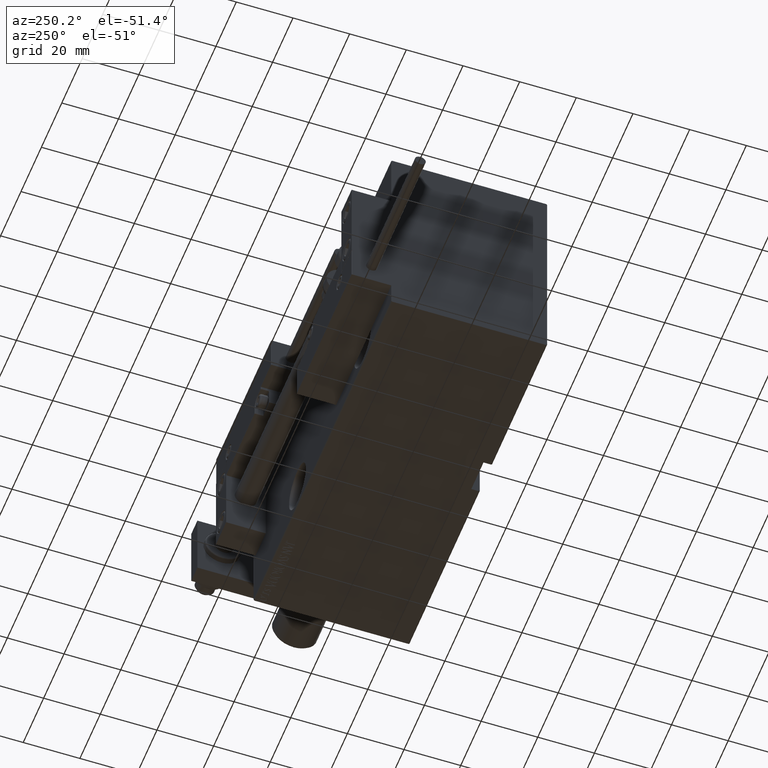
[diagram: clean part render]
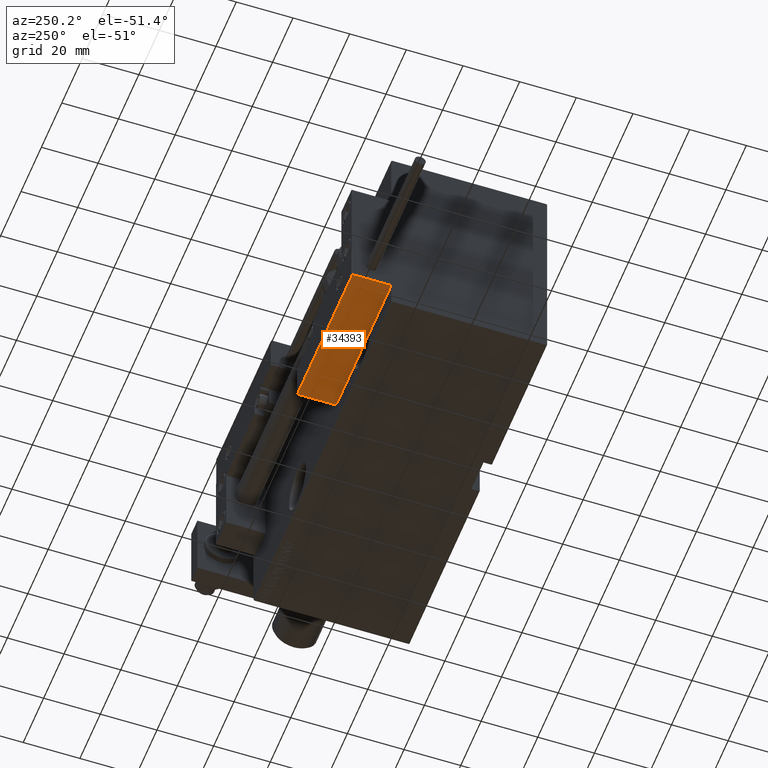
[diagram: same view with one face highlighted and labeled with its STEP entity id]
A machine part, auxiliary view. The second image highlights one B-rep face of the part: STEP entity #34393.
In plain terms, the highlighted planar face has unit normal (-0, -0, 1).
Its self-contained STEP definition (entity closure, byte-faithful):
#3226 = VECTOR ( 'NONE', #36299, 1000.000000000000000 ) ;
#6164 = EDGE_CURVE ( 'NONE', #8345, #11959, #34583, .T. ) ;
#7556 = CARTESIAN_POINT ( 'NONE',  ( 27.00000000000006395, 20.00000000000001776, 13.70000000000000107 ) ) ;
#7777 = EDGE_CURVE ( 'NONE', #44246, #42192, #32487, .T. ) ;
#8345 = VERTEX_POINT ( 'NONE', #36674 ) ;
#9451 = FACE_OUTER_BOUND ( 'NONE', #36701, .T. ) ;
#9941 = DIRECTION ( 'NONE',  ( -6.424901762877063495E-17, -1.000000000000000000, 0.000000000000000000 ) ) ;
#10710 = DIRECTION ( 'NONE',  ( -1.000000000000000000, 6.424901762877062263E-17, 0.000000000000000000 ) ) ;
#11519 = DIRECTION ( 'NONE',  ( -0.000000000000000000, -0.000000000000000000, -1.000000000000000000 ) ) ;
#11959 = VERTEX_POINT ( 'NONE', #39007 ) ;
#12781 = CARTESIAN_POINT ( 'NONE',  ( -26.99999999999993605, 20.00000000000002132, 13.70000000000000107 ) ) ;
#20395 = VECTOR ( 'NONE', #32434, 1000.000000000000000 ) ;
#20730 = ORIENTED_EDGE ( 'NONE', *, *, #7777, .T. ) ;
#21461 = ORIENTED_EDGE ( 'NONE', *, *, #6164, .T. ) ;
#21940 = EDGE_CURVE ( 'NONE', #42192, #8345, #35137, .T. ) ;
#24572 = LINE ( 'NONE', #43351, #20395 ) ;
#24873 = CARTESIAN_POINT ( 'NONE',  ( 27.00000000000006395, 20.00000000000001776, 13.70000000000000107 ) ) ;
#24949 = CARTESIAN_POINT ( 'NONE',  ( 27.00000000000006395, 20.00000000000001776, 14.00000000000000000 ) ) ;
#26505 = CARTESIAN_POINT ( 'NONE',  ( 27.00000000000006395, 20.00000000000001776, 14.00000000000000000 ) ) ;
#27374 = AXIS2_PLACEMENT_3D ( 'NONE', #24949, #9941, #36622 ) ;
#29434 = VECTOR ( 'NONE', #11519, 1000.000000000000000 ) ;
#29529 = ORIENTED_EDGE ( 'NONE', *, *, #21940, .T. ) ;
#32434 = DIRECTION ( 'NONE',  ( -0.000000000000000000, -0.000000000000000000, -1.000000000000000000 ) ) ;
#32487 = LINE ( 'NONE', #24873, #3226 ) ;
#34393 = ADVANCED_FACE ( 'NONE', ( #9451 ), #44720, .F. ) ;
#34583 = LINE ( 'NONE', #49553, #42883 ) ;
#35137 = LINE ( 'NONE', #26505, #29434 ) ;
#36299 = DIRECTION ( 'NONE',  ( 1.000000000000000000, -6.424901762877063495E-17, -0.000000000000000000 ) ) ;
#36622 = DIRECTION ( 'NONE',  ( 1.000000000000000000, -6.424901762877063495E-17, 0.000000000000000000 ) ) ;
#36674 = CARTESIAN_POINT ( 'NONE',  ( 27.00000000000006395, 20.00000000000001776, 0.000000000000000000 ) ) ;
#36701 = EDGE_LOOP ( 'NONE', ( #37353, #20730, #29529, #21461 ) ) ;
#37353 = ORIENTED_EDGE ( 'NONE', *, *, #48016, .F. ) ;
#39007 = CARTESIAN_POINT ( 'NONE',  ( -26.99999999999993605, 20.00000000000002132, 0.000000000000000000 ) ) ;
#42192 = VERTEX_POINT ( 'NONE', #7556 ) ;
#42883 = VECTOR ( 'NONE', #10710, 1000.000000000000000 ) ;
#43351 = CARTESIAN_POINT ( 'NONE',  ( -26.99999999999993605, 20.00000000000002132, 14.00000000000000000 ) ) ;
#44246 = VERTEX_POINT ( 'NONE', #12781 ) ;
#44720 = PLANE ( 'NONE',  #27374 ) ;
#48016 = EDGE_CURVE ( 'NONE', #44246, #11959, #24572, .T. ) ;
#49553 = CARTESIAN_POINT ( 'NONE',  ( 27.00000000000006395, 20.00000000000001776, 0.000000000000000000 ) ) ;